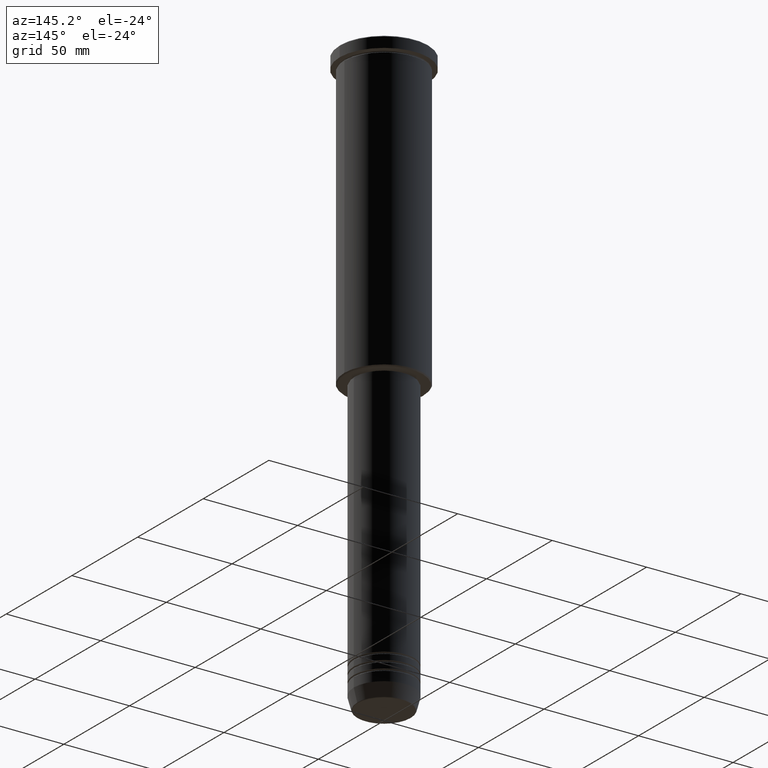
[diagram: clean part render]
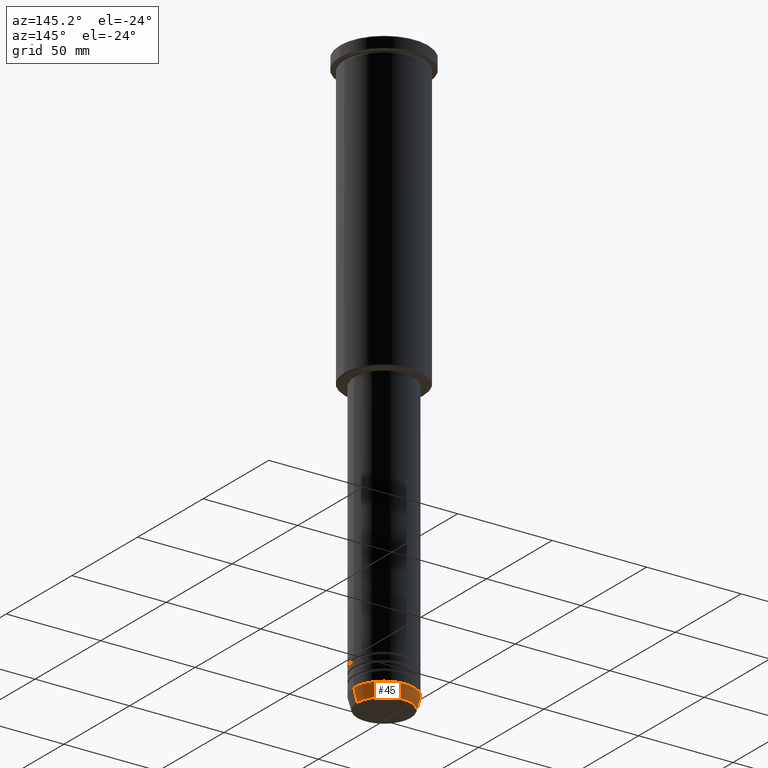
[diagram: same view with one face highlighted and labeled with its STEP entity id]
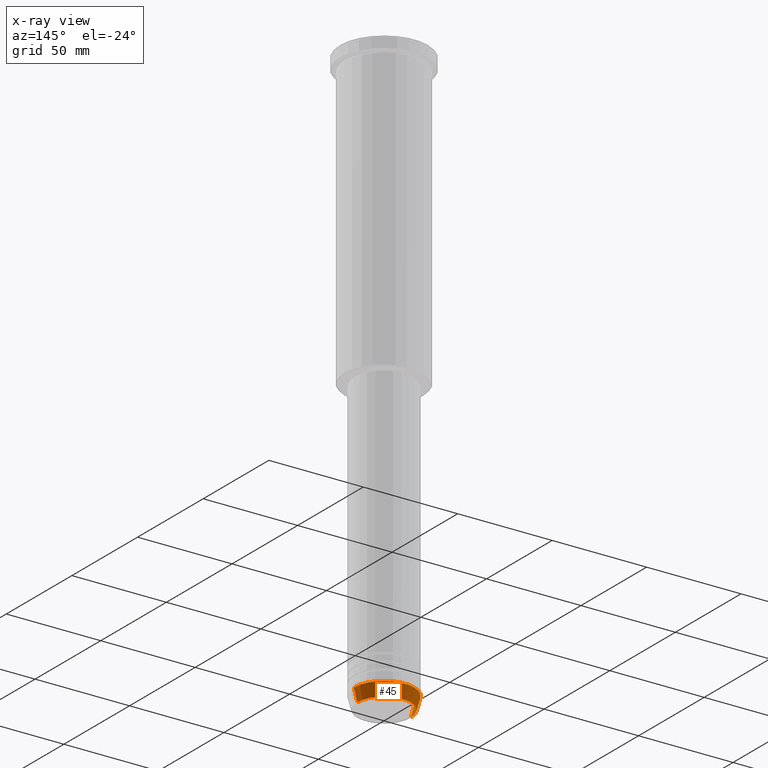
[diagram: x-ray of the same camera — body ghosted, the highlighted face saturated]
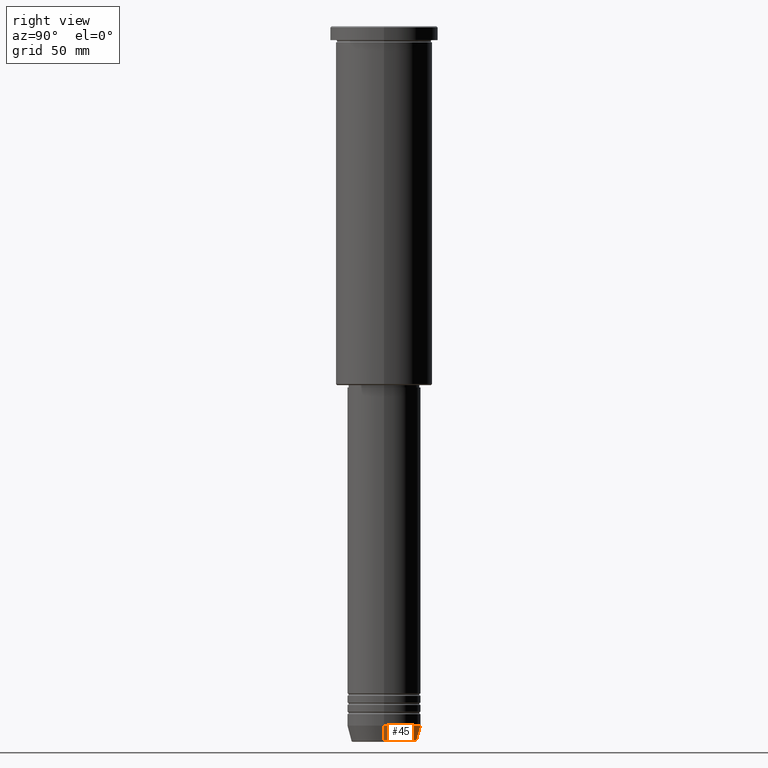
[diagram: same view with one face highlighted and labeled with its STEP entity id]
A machine part, auxiliary view. The second image highlights one B-rep face of the part: STEP entity #45.
The next image is the same camera in x-ray: the body ghosted, the highlighted face saturated — about 0% of this face is hidden behind the body in this view.
A second angle (right view) of the same face is appended — the face is thin or edge-on in the first view.
In plain terms, the highlighted conical surface has half-angle 15 deg.
Its self-contained STEP definition (entity closure, byte-faithful):
#15 = CARTESIAN_POINT ( 'NONE',  ( 16.00000000000000000, 0.000000000000000000, -304.0000000000000000 ) ) ;
#27 = DIRECTION ( 'NONE',  ( -0.000000000000000000, -0.000000000000000000, 1.000000000000000000 ) ) ;
#45 = ADVANCED_FACE ( 'NONE', ( #870 ), #1117, .T. ) ;
#131 = EDGE_LOOP ( 'NONE', ( #982, #1130, #914, #895 ) ) ;
#133 = CARTESIAN_POINT ( 'NONE',  ( 0.000000000000000000, 0.000000000000000000, -304.0000000000000000 ) ) ;
#134 = EDGE_CURVE ( 'NONE', #237, #814, #412, .T. ) ;
#166 = CIRCLE ( 'NONE', #830, 16.00000000000000000 ) ;
#216 = DIRECTION ( 'NONE',  ( 1.000000000000000000, 0.000000000000000000, 0.000000000000000000 ) ) ;
#233 = DIRECTION ( 'NONE',  ( 0.2588190451025213501, 0.000000000000000000, 0.9659258262890680902 ) ) ;
#237 = VERTEX_POINT ( 'NONE', #707 ) ;
#389 = DIRECTION ( 'NONE',  ( -0.000000000000000000, -0.000000000000000000, 1.000000000000000000 ) ) ;
#410 = CARTESIAN_POINT ( 'NONE',  ( 16.00000000000000000, 0.000000000000000000, -304.0000000000000000 ) ) ;
#412 = LINE ( 'NONE', #491, #596 ) ;
#482 = LINE ( 'NONE', #410, #810 ) ;
#486 = CARTESIAN_POINT ( 'NONE',  ( 0.000000000000000000, 0.000000000000000000, -310.6294095225512706 ) ) ;
#491 = CARTESIAN_POINT ( 'NONE',  ( -16.00000000000000000, 1.959434878635765131E-15, -304.0000000000000000 ) ) ;
#507 = DIRECTION ( 'NONE',  ( 1.000000000000000000, 0.000000000000000000, 0.000000000000000000 ) ) ;
#579 = DIRECTION ( 'NONE',  ( 1.000000000000000000, 0.000000000000000000, 0.000000000000000000 ) ) ;
#596 = VECTOR ( 'NONE', #775, 1000.000000000000000 ) ;
#707 = CARTESIAN_POINT ( 'NONE',  ( -14.22365507213718772, 1.850665122131323337E-15, -310.6294095225512706 ) ) ;
#719 = VERTEX_POINT ( 'NONE', #1096 ) ;
#745 = VERTEX_POINT ( 'NONE', #15 ) ;
#775 = DIRECTION ( 'NONE',  ( -0.2588190451025213501, 3.169619151431772337E-17, 0.9659258262890680902 ) ) ;
#796 = EDGE_CURVE ( 'NONE', #719, #237, #1159, .T. ) ;
#810 = VECTOR ( 'NONE', #233, 1000.000000000000000 ) ;
#814 = VERTEX_POINT ( 'NONE', #951 ) ;
#830 = AXIS2_PLACEMENT_3D ( 'NONE', #133, #389, #579 ) ;
#844 = EDGE_CURVE ( 'NONE', #719, #745, #482, .T. ) ;
#870 = FACE_OUTER_BOUND ( 'NONE', #131, .T. ) ;
#895 = ORIENTED_EDGE ( 'NONE', *, *, #844, .F. ) ;
#907 = AXIS2_PLACEMENT_3D ( 'NONE', #486, #27, #216 ) ;
#914 = ORIENTED_EDGE ( 'NONE', *, *, #1160, .F. ) ;
#951 = CARTESIAN_POINT ( 'NONE',  ( -16.00000000000000000, 1.959434878635765131E-15, -304.0000000000000000 ) ) ;
#982 = ORIENTED_EDGE ( 'NONE', *, *, #796, .T. ) ;
#1096 = CARTESIAN_POINT ( 'NONE',  ( 14.22365507213718772, 0.000000000000000000, -310.6294095225512706 ) ) ;
#1117 = CONICAL_SURFACE ( 'NONE', #1182, 16.00000000000000000, 0.2617993877991500740 ) ;
#1130 = ORIENTED_EDGE ( 'NONE', *, *, #134, .T. ) ;
#1145 = CARTESIAN_POINT ( 'NONE',  ( 0.000000000000000000, 0.000000000000000000, -304.0000000000000000 ) ) ;
#1157 = DIRECTION ( 'NONE',  ( -0.000000000000000000, -0.000000000000000000, 1.000000000000000000 ) ) ;
#1159 = CIRCLE ( 'NONE', #907, 14.22365507213718772 ) ;
#1160 = EDGE_CURVE ( 'NONE', #745, #814, #166, .T. ) ;
#1182 = AXIS2_PLACEMENT_3D ( 'NONE', #1145, #1157, #507 ) ;